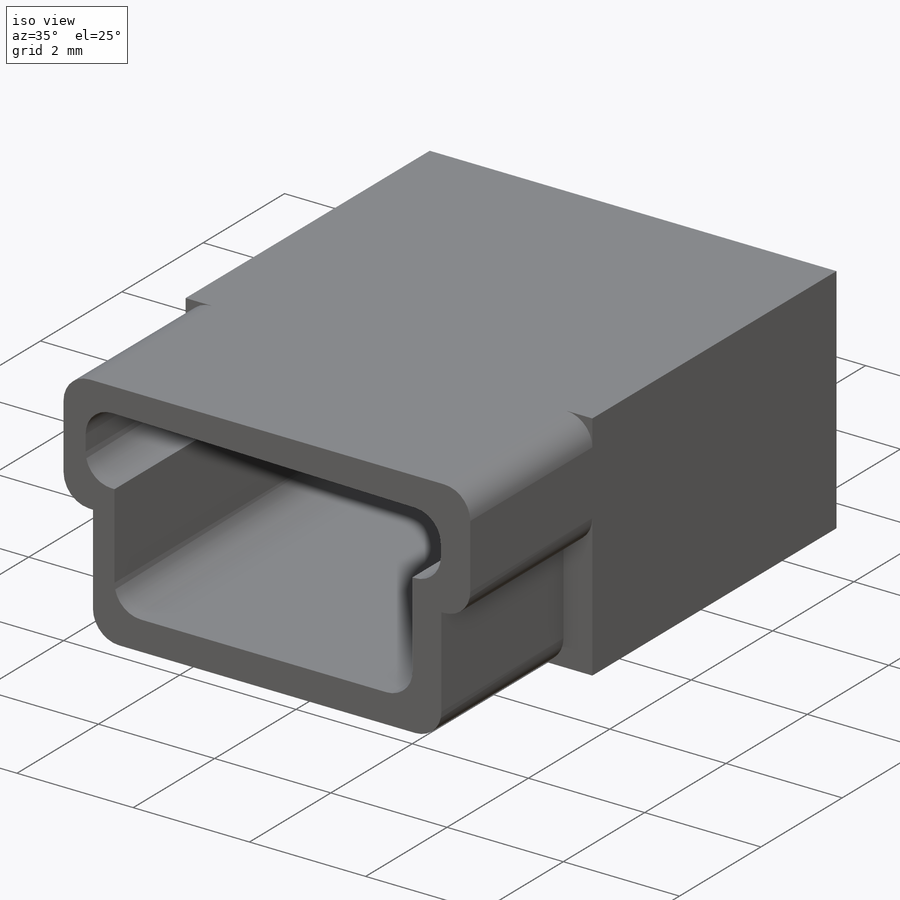
[diagram: iso view]
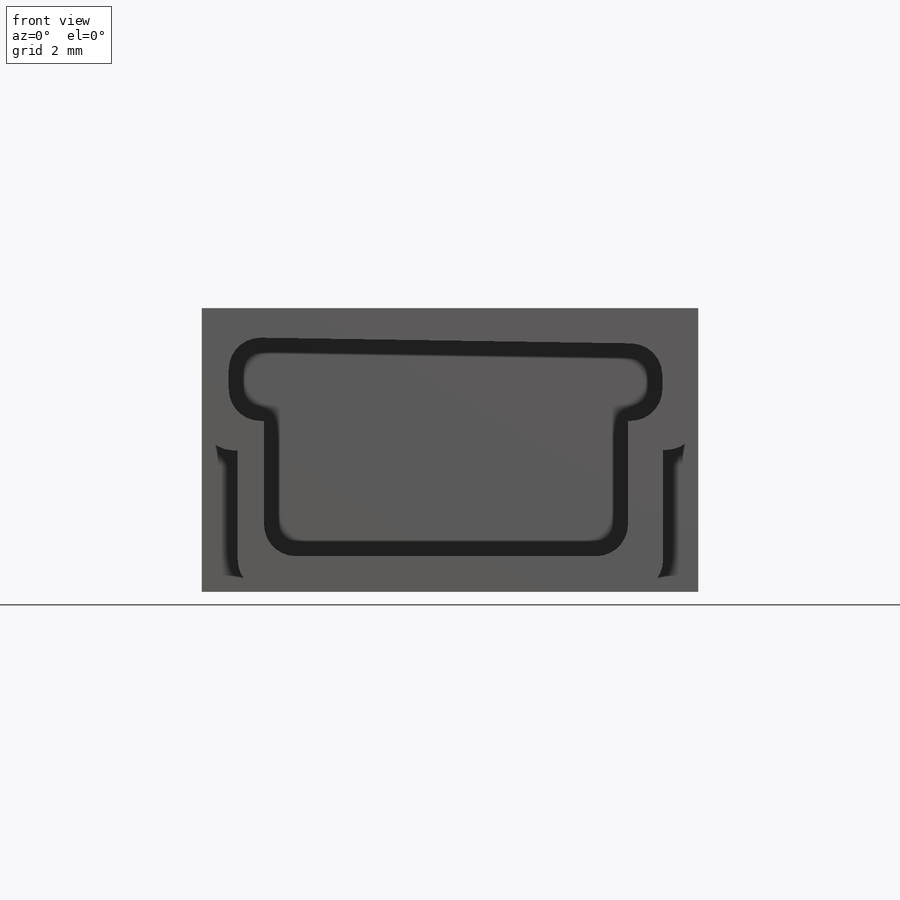
[diagram: front view]
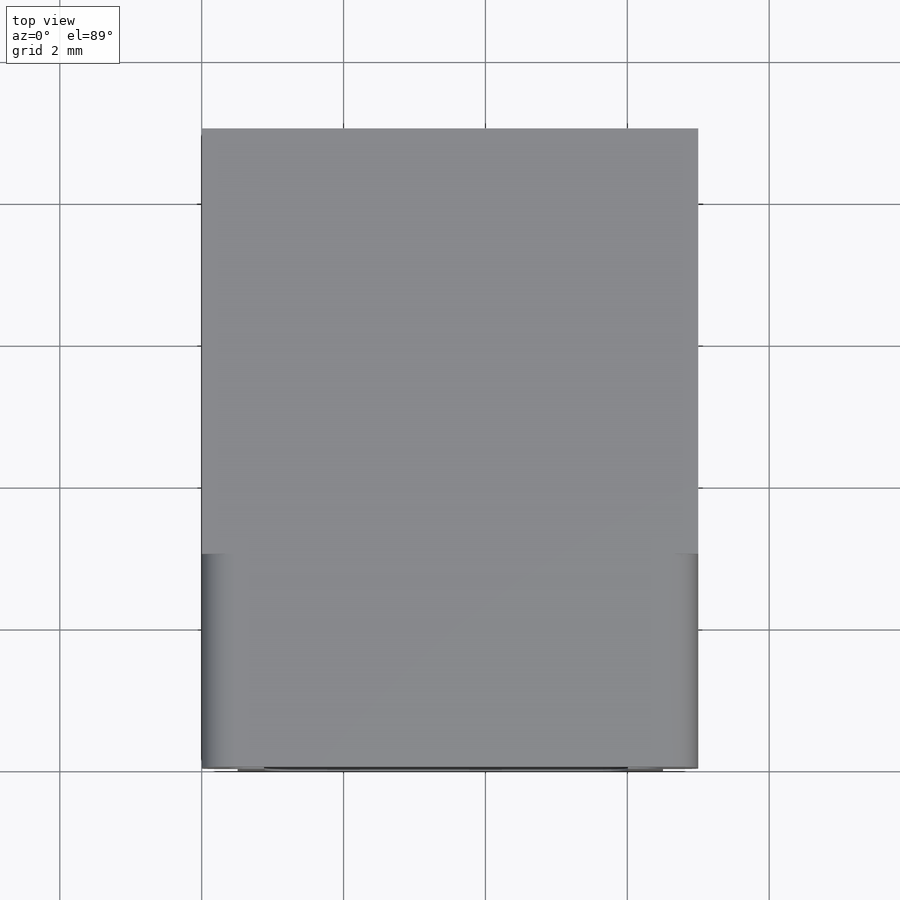
[diagram: top view]
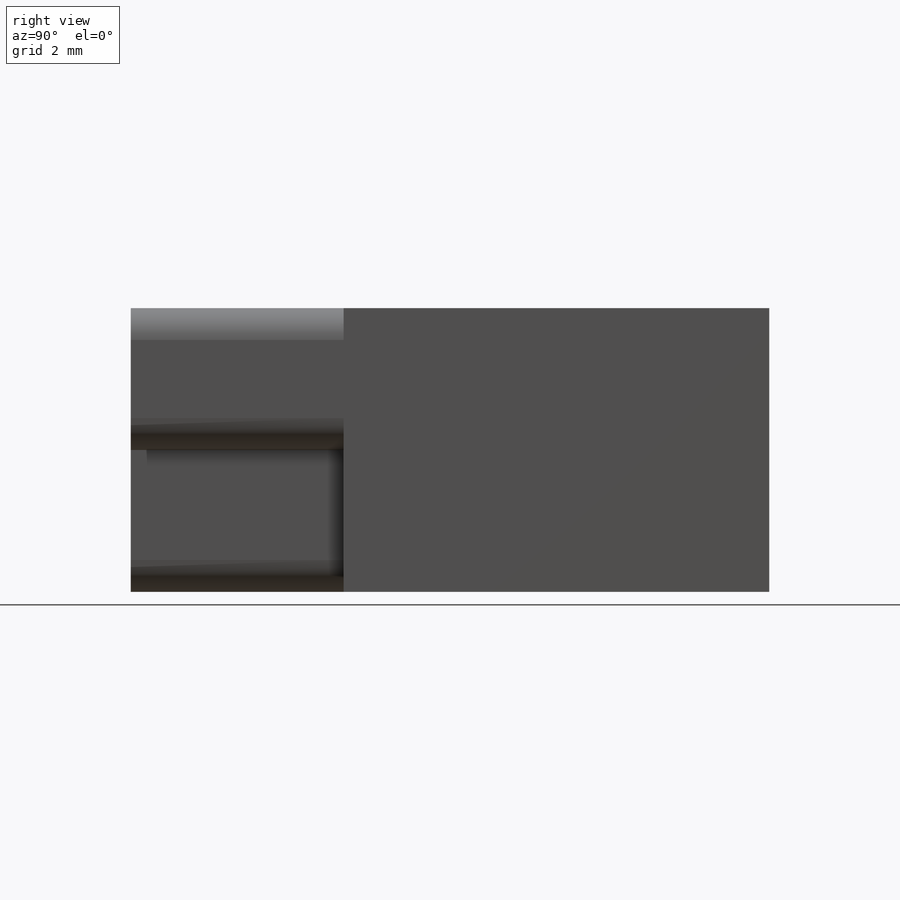
[diagram: right view]
SOLIDWORKS PART (.sldprt)
format: sldprt  version: not decoded by parser v0  size: 223,744 bytes
history: native  units: mm
features: sketch x3, plane x2, cut_extrude x2, material x1, extrude x1 (+12 scaffold rows collapsed)
feature tree (21):
  scaffold x12  (default folders/planes/origin — collapsed)
  material  "Material <not specified>"
  sketch  "Sketch9"
  extrude  "Boss-Extrude5"  Depth=4mm
  plane  "Plane1"
  plane  "Plane2"
  sketch  "Sketch23"  dims[D1=0.5mm]
  cut_extrude  "Cut-Extrude2"  Depth=3mm
  sketch  "Sketch24"  dims[D1=0.45mm]
  cut_extrude  "Cut-Extrude3"  Depth=8mm
decode coverage: 5 of 6 modeling features carry decoded parameters
note: suppression state not decoded; provenance and decode notes live in map.json
